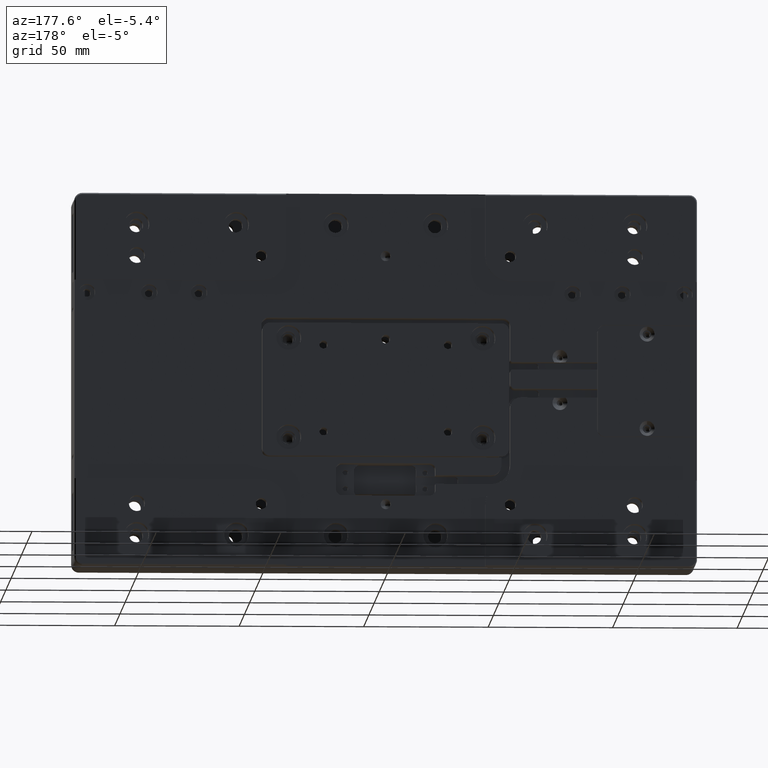
[diagram: clean part render]
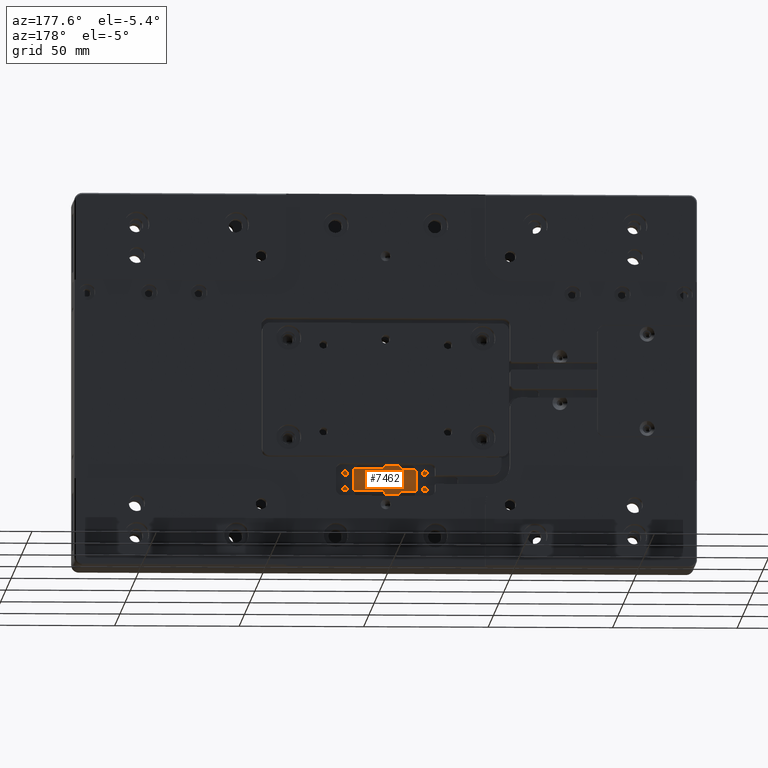
[diagram: same view with one face highlighted and labeled with its STEP entity id]
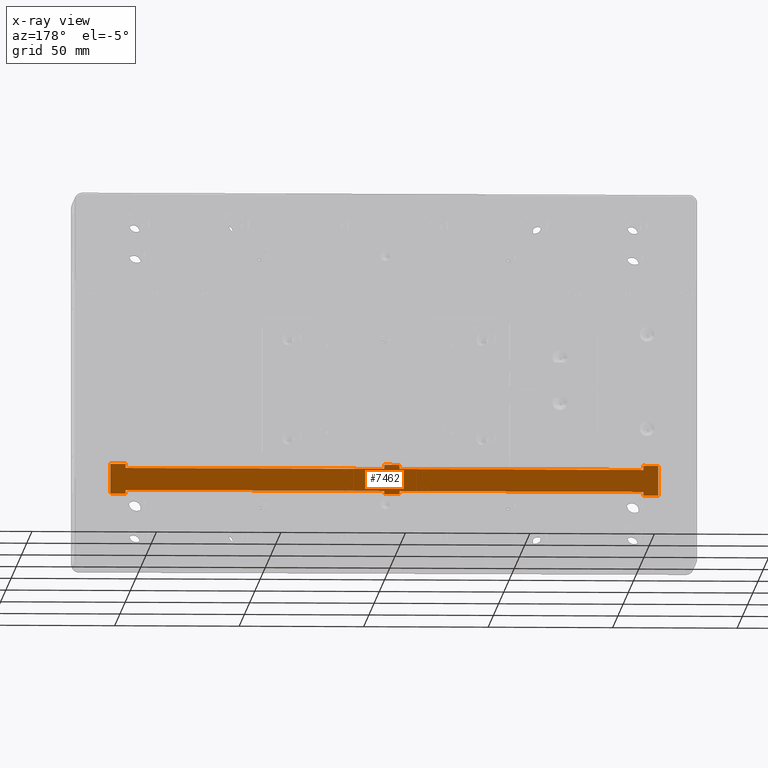
[diagram: x-ray of the same camera — body ghosted, the highlighted face saturated]
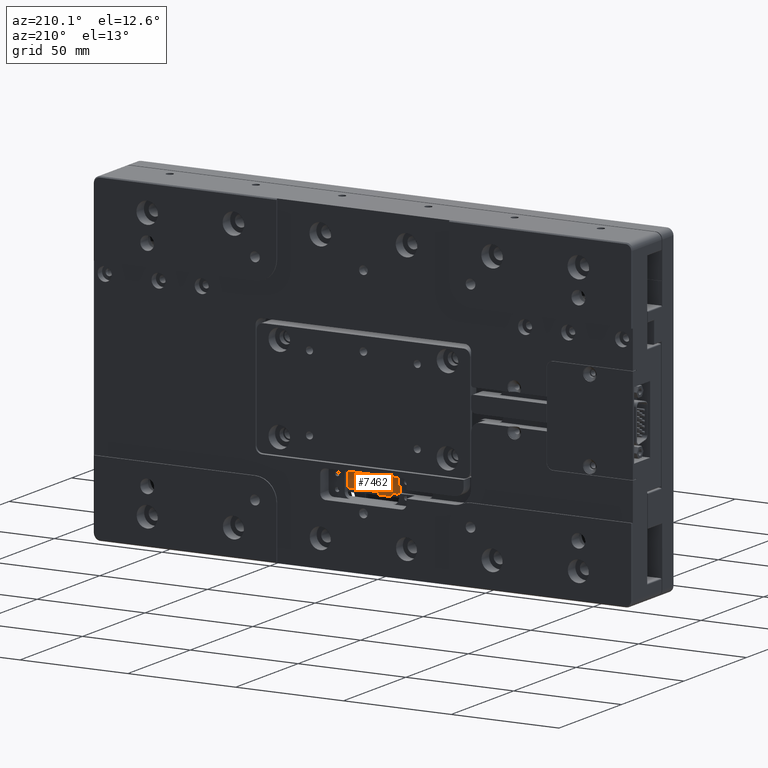
[diagram: same view with one face highlighted and labeled with its STEP entity id]
A machine part, auxiliary view. The second image highlights one B-rep face of the part: STEP entity #7462.
The next image is the same camera in x-ray: the body ghosted, the highlighted face saturated — about 0% of this face is hidden behind the body in this view.
A second angle (auxiliary view) of the same face is appended — the face is thin or edge-on in the first view.
In plain terms, the highlighted planar face has unit normal (0, 1, 0).
Its self-contained STEP definition (entity closure, byte-faithful):
#258 = VERTEX_POINT ( 'NONE', #20641 ) ;
#387 = DIRECTION ( 'NONE',  ( 1.000000000000000000, -0.000000000000000000, 0.000000000000000000 ) ) ;
#663 = CARTESIAN_POINT ( 'NONE',  ( 104.0000000000000142, -0.9120000000000000329, -34.67000000000000171 ) ) ;
#665 = ORIENTED_EDGE ( 'NONE', *, *, #26161, .T. ) ;
#938 = CARTESIAN_POINT ( 'NONE',  ( 0.000000000000000000, -0.9120000000000000329, -38.67000000000000171 ) ) ;
#953 = CARTESIAN_POINT ( 'NONE',  ( 0.000000000000000000, -0.9120000000000000329, -44.85000000000000142 ) ) ;
#1233 = DIRECTION ( 'NONE',  ( 1.000000000000000000, 0.000000000000000000, -0.000000000000000000 ) ) ;
#1599 = CARTESIAN_POINT ( 'NONE',  ( 0.000000000000000000, -0.9120000000000000329, -34.67000000000000171 ) ) ;
#1828 = VERTEX_POINT ( 'NONE', #953 ) ;
#1873 = VERTEX_POINT ( 'NONE', #19340 ) ;
#1964 = ORIENTED_EDGE ( 'NONE', *, *, #22223, .T. ) ;
#1990 = LINE ( 'NONE', #15896, #23854 ) ;
#2261 = ORIENTED_EDGE ( 'NONE', *, *, #26035, .T. ) ;
#2496 = VERTEX_POINT ( 'NONE', #10819 ) ;
#2770 = DIRECTION ( 'NONE',  ( -0.000000000000000000, 0.000000000000000000, -1.000000000000000000 ) ) ;
#3212 = EDGE_CURVE ( 'NONE', #1828, #19895, #20010, .T. ) ;
#3283 = VECTOR ( 'NONE', #34679, 1000.000000000000000 ) ;
#3350 = DIRECTION ( 'NONE',  ( 0.000000000000000000, -0.000000000000000000, 1.000000000000000000 ) ) ;
#3373 = EDGE_CURVE ( 'NONE', #258, #15784, #4113, .T. ) ;
#3597 = CARTESIAN_POINT ( 'NONE',  ( 104.0000000000000142, -0.9120000000000000329, -38.67000000000000171 ) ) ;
#4113 = LINE ( 'NONE', #15711, #3283 ) ;
#4285 = EDGE_CURVE ( 'NONE', #1873, #28539, #1990, .T. ) ;
#4422 = DIRECTION ( 'NONE',  ( 1.000000000000000000, 0.000000000000000000, -0.000000000000000000 ) ) ;
#4671 = ORIENTED_EDGE ( 'NONE', *, *, #4285, .T. ) ;
#5122 = DIRECTION ( 'NONE',  ( 0.000000000000000000, 0.000000000000000000, 1.000000000000000000 ) ) ;
#5160 = VECTOR ( 'NONE', #6179, 1000.000000000000000 ) ;
#5239 = ORIENTED_EDGE ( 'NONE', *, *, #17196, .T. ) ;
#5281 = VERTEX_POINT ( 'NONE', #7926 ) ;
#5769 = CARTESIAN_POINT ( 'NONE',  ( -6.000000000000001776, -0.9120000000000000329, -33.00000000000000000 ) ) ;
#6179 = DIRECTION ( 'NONE',  ( 0.000000000000000000, -0.000000000000000000, 1.000000000000000000 ) ) ;
#6230 = CARTESIAN_POINT ( 'NONE',  ( -6.000000000000000888, -0.9120000000000000329, -43.50000000000000711 ) ) ;
#6271 = ORIENTED_EDGE ( 'NONE', *, *, #17654, .T. ) ;
#6370 = CARTESIAN_POINT ( 'NONE',  ( 104.0000000000000284, -0.9120000000000000329, -43.50000000000000711 ) ) ;
#6471 = ORIENTED_EDGE ( 'NONE', *, *, #13898, .F. ) ;
#6499 = CARTESIAN_POINT ( 'NONE',  ( 109.5632503002220943, -0.9120000000000000329, -45.00000000000596856 ) ) ;
#6594 = VECTOR ( 'NONE', #31668, 1000.000000000000000 ) ;
#6818 = EDGE_CURVE ( 'NONE', #24577, #24976, #21214, .T. ) ;
#6826 = EDGE_CURVE ( 'NONE', #26795, #35192, #34854, .T. ) ;
#7060 = DIRECTION ( 'NONE',  ( -0.000000000000000000, 0.000000000000000000, -1.000000000000000000 ) ) ;
#7186 = ORIENTED_EDGE ( 'NONE', *, *, #13291, .T. ) ;
#7271 = ORIENTED_EDGE ( 'NONE', *, *, #6826, .T. ) ;
#7407 = VERTEX_POINT ( 'NONE', #33546 ) ;
#7462 = ADVANCED_FACE ( 'NONE', ( #11902 ), #22444, .T. ) ;
#7531 = ORIENTED_EDGE ( 'NONE', *, *, #21808, .F. ) ;
#7590 = AXIS2_PLACEMENT_3D ( 'NONE', #9053, #33368, #3350 ) ;
#7926 = CARTESIAN_POINT ( 'NONE',  ( 0.000000000000000000, -0.9120000000000000329, -34.67000000000000171 ) ) ;
#8053 = LINE ( 'NONE', #30387, #16811 ) ;
#8174 = CARTESIAN_POINT ( 'NONE',  ( -109.5632503002220943, -0.9120000000000000329, -45.00000000000596856 ) ) ;
#8333 = VERTEX_POINT ( 'NONE', #8446 ) ;
#8337 = CARTESIAN_POINT ( 'NONE',  ( 110.0000000000000000, -0.9120000000000000329, -44.89196010845009965 ) ) ;
#8446 = CARTESIAN_POINT ( 'NONE',  ( 0.000000000000000000, -0.9120000000000000329, -43.50000000000000711 ) ) ;
#8479 = LINE ( 'NONE', #3597, #20660 ) ;
#8650 = DIRECTION ( 'NONE',  ( -0.000000000000000000, 0.000000000000000000, -1.000000000000000000 ) ) ;
#8680 = CARTESIAN_POINT ( 'NONE',  ( -6.000000000000000888, -0.9120000000000000329, -44.85000000000000142 ) ) ;
#8699 = DIRECTION ( 'NONE',  ( 1.000000000000000000, -0.000000000000000000, 0.000000000000000000 ) ) ;
#9053 = CARTESIAN_POINT ( 'NONE',  ( 0.000000000000000000, -0.9120000000000000329, -38.67000000000000171 ) ) ;
#10151 = EDGE_CURVE ( 'NONE', #25513, #27929, #30551, .T. ) ;
#10184 = VECTOR ( 'NONE', #4422, 1000.000000000000000 ) ;
#10374 = ORIENTED_EDGE ( 'NONE', *, *, #3373, .T. ) ;
#10461 = CARTESIAN_POINT ( 'NONE',  ( 110.5000000000000000, -0.9120000000000000329, -47.85000000000000142 ) ) ;
#10498 = EDGE_LOOP ( 'NONE', ( #16755, #12603, #6471, #24901, #7186, #20848, #12175, #30168, #26065, #1964, #7531, #17996, #27676, #7271, #5239, #23125, #10374, #6271, #2261, #31801, #665, #4671 ) ) ;
#10677 = CARTESIAN_POINT ( 'NONE',  ( 104.0000000000000142, -0.9120000000000000329, -38.67000000000000171 ) ) ;
#10819 = CARTESIAN_POINT ( 'NONE',  ( -104.0000000000000284, -0.9120000000000000329, -34.67000000000000171 ) ) ;
#11048 = VECTOR ( 'NONE', #12293, 1000.000000000000000 ) ;
#11063 = CARTESIAN_POINT ( 'NONE',  ( 0.000000000000000000, -0.9120000000000000329, -43.50000000000000711 ) ) ;
#11758 = VERTEX_POINT ( 'NONE', #663 ) ;
#11874 = CARTESIAN_POINT ( 'NONE',  ( 0.000000000000000000, -0.9120000000000000329, -43.50000000000000711 ) ) ;
#11902 = FACE_OUTER_BOUND ( 'NONE', #10498, .T. ) ;
#11950 = CARTESIAN_POINT ( 'NONE',  ( -104.0000000000000284, -0.9120000000000000329, -33.00000000000000000 ) ) ;
#12027 = DIRECTION ( 'NONE',  ( -1.000000000000000000, -0.000000000000000000, 0.000000000000000000 ) ) ;
#12175 = ORIENTED_EDGE ( 'NONE', *, *, #3212, .T. ) ;
#12242 = CARTESIAN_POINT ( 'NONE',  ( -125.0000000000000000, -0.9119999999999995888, -45.00000000000000000 ) ) ;
#12293 = DIRECTION ( 'NONE',  ( 0.000000000000000000, 0.000000000000000000, 1.000000000000000000 ) ) ;
#12358 = CARTESIAN_POINT ( 'NONE',  ( -104.0000000000000142, -0.9120000000000000329, -38.67000000000000171 ) ) ;
#12603 = ORIENTED_EDGE ( 'NONE', *, *, #30873, .T. ) ;
#13191 = DIRECTION ( 'NONE',  ( 4.625929269271481378E-14, 0.000000000000000000, 1.000000000000000000 ) ) ;
#13291 = EDGE_CURVE ( 'NONE', #15210, #8333, #15069, .T. ) ;
#13318 = DIRECTION ( 'NONE',  ( -0.000000000000000000, -1.000000000000000000, -0.000000000000000000 ) ) ;
#13367 = VECTOR ( 'NONE', #21966, 1000.000000000000000 ) ;
#13885 = LINE ( 'NONE', #10677, #32150 ) ;
#13898 = EDGE_CURVE ( 'NONE', #17020, #28782, #24430, .T. ) ;
#14177 = LINE ( 'NONE', #33141, #16736 ) ;
#14330 = VECTOR ( 'NONE', #12027, 1000.000000000000000 ) ;
#14825 = DIRECTION ( 'NONE',  ( -1.000000000000000000, -0.000000000000000000, 0.000000000000000000 ) ) ;
#15007 = VECTOR ( 'NONE', #31540, 1000.000000000000000 ) ;
#15069 = LINE ( 'NONE', #11874, #14330 ) ;
#15077 = EDGE_CURVE ( 'NONE', #17020, #15210, #13885, .T. ) ;
#15210 = VERTEX_POINT ( 'NONE', #6370 ) ;
#15711 = CARTESIAN_POINT ( 'NONE',  ( -6.000000000000000000, -0.9120000000000000329, -38.67000000000000171 ) ) ;
#15784 = VERTEX_POINT ( 'NONE', #5769 ) ;
#15896 = CARTESIAN_POINT ( 'NONE',  ( 115.0000000000000000, -0.9120000000000000329, -33.00000000000000000 ) ) ;
#16064 = VECTOR ( 'NONE', #24102, 1000.000000000000000 ) ;
#16736 = VECTOR ( 'NONE', #8650, 1000.000000000000000 ) ;
#16755 = ORIENTED_EDGE ( 'NONE', *, *, #28817, .T. ) ;
#16811 = VECTOR ( 'NONE', #387, 1000.000000000000000 ) ;
#17020 = VERTEX_POINT ( 'NONE', #30088 ) ;
#17043 = CARTESIAN_POINT ( 'NONE',  ( 110.0000000000000000, -0.9120000000000000329, -34.67000000000000171 ) ) ;
#17196 = EDGE_CURVE ( 'NONE', #35192, #2496, #29164, .T. ) ;
#17654 = EDGE_CURVE ( 'NONE', #15784, #7407, #8053, .T. ) ;
#17996 = ORIENTED_EDGE ( 'NONE', *, *, #6818, .T. ) ;
#18817 = AXIS2_PLACEMENT_3D ( 'NONE', #10461, #13318, #5122 ) ;
#18824 = LINE ( 'NONE', #938, #20906 ) ;
#19019 = CARTESIAN_POINT ( 'NONE',  ( -110.0000000000000000, -0.9120000000000000329, -44.89196010845009965 ) ) ;
#19340 = CARTESIAN_POINT ( 'NONE',  ( 104.0000000000000142, -0.9120000000000000329, -33.00000000000000000 ) ) ;
#19757 = VECTOR ( 'NONE', #7060, 1000.000000000000000 ) ;
#19895 = VERTEX_POINT ( 'NONE', #8680 ) ;
#19983 = LINE ( 'NONE', #20155, #11048 ) ;
#20010 = LINE ( 'NONE', #30921, #25514 ) ;
#20120 = CARTESIAN_POINT ( 'NONE',  ( 0.000000000000000000, -0.9120000000000000329, -34.67000000000000171 ) ) ;
#20155 = CARTESIAN_POINT ( 'NONE',  ( -110.0000000000000000, -0.9120000000000000329, -43.50000000000000711 ) ) ;
#20410 = VECTOR ( 'NONE', #28484, 1000.000000000000000 ) ;
#20641 = CARTESIAN_POINT ( 'NONE',  ( -6.000000000000002665, -0.9120000000000000329, -34.67000000000000171 ) ) ;
#20660 = VECTOR ( 'NONE', #25397, 1000.000000000000000 ) ;
#20848 = ORIENTED_EDGE ( 'NONE', *, *, #26103, .T. ) ;
#20906 = VECTOR ( 'NONE', #2770, 1000.000000000000000 ) ;
#21214 = CIRCLE ( 'NONE', #29778, 3.000000000000002665 ) ;
#21808 = EDGE_CURVE ( 'NONE', #24577, #34518, #29053, .T. ) ;
#21966 = DIRECTION ( 'NONE',  ( -1.000000000000000000, -0.000000000000000000, 0.000000000000000000 ) ) ;
#22223 = EDGE_CURVE ( 'NONE', #27929, #34518, #14177, .T. ) ;
#22374 = VECTOR ( 'NONE', #8699, 1000.000000000000000 ) ;
#22444 = PLANE ( 'NONE',  #7590 ) ;
#22714 = CARTESIAN_POINT ( 'NONE',  ( -104.0000000000000284, -0.9120000000000000329, -43.50000000000000711 ) ) ;
#23125 = ORIENTED_EDGE ( 'NONE', *, *, #24330, .T. ) ;
#23167 = LINE ( 'NONE', #20120, #10184 ) ;
#23412 = DIRECTION ( 'NONE',  ( 1.000000000000000000, -0.000000000000000000, 0.000000000000000000 ) ) ;
#23851 = LINE ( 'NONE', #34766, #19757 ) ;
#23854 = VECTOR ( 'NONE', #23412, 1000.000000000000000 ) ;
#23940 = CARTESIAN_POINT ( 'NONE',  ( -110.5000000000000000, -0.9120000000000000329, -47.85000000000000142 ) ) ;
#24102 = DIRECTION ( 'NONE',  ( 1.000000000000000000, -0.000000000000000000, 0.000000000000000000 ) ) ;
#24330 = EDGE_CURVE ( 'NONE', #2496, #258, #25704, .T. ) ;
#24430 = LINE ( 'NONE', #32645, #22374 ) ;
#24577 = VERTEX_POINT ( 'NONE', #8174 ) ;
#24901 = ORIENTED_EDGE ( 'NONE', *, *, #15077, .T. ) ;
#24976 = VERTEX_POINT ( 'NONE', #19019 ) ;
#25397 = DIRECTION ( 'NONE',  ( 0.000000000000000000, -0.000000000000000000, 1.000000000000000000 ) ) ;
#25513 = VERTEX_POINT ( 'NONE', #6230 ) ;
#25514 = VECTOR ( 'NONE', #14825, 1000.000000000000000 ) ;
#25704 = LINE ( 'NONE', #1599, #32793 ) ;
#25779 = LINE ( 'NONE', #17043, #20410 ) ;
#26035 = EDGE_CURVE ( 'NONE', #7407, #5281, #23851, .T. ) ;
#26065 = ORIENTED_EDGE ( 'NONE', *, *, #10151, .T. ) ;
#26103 = EDGE_CURVE ( 'NONE', #8333, #1828, #18824, .T. ) ;
#26161 = EDGE_CURVE ( 'NONE', #11758, #1873, #8479, .T. ) ;
#26795 = VERTEX_POINT ( 'NONE', #33746 ) ;
#26814 = CIRCLE ( 'NONE', #18817, 3.000000000000002665 ) ;
#27627 = CARTESIAN_POINT ( 'NONE',  ( -6.000000000000000000, -0.9120000000000000329, -38.67000000000000171 ) ) ;
#27663 = DIRECTION ( 'NONE',  ( 0.000000000000000000, -0.000000000000000000, 1.000000000000000000 ) ) ;
#27676 = ORIENTED_EDGE ( 'NONE', *, *, #33956, .T. ) ;
#27929 = VERTEX_POINT ( 'NONE', #22714 ) ;
#28484 = DIRECTION ( 'NONE',  ( 0.000000000000000000, 0.000000000000000000, -1.000000000000000000 ) ) ;
#28539 = VERTEX_POINT ( 'NONE', #31905 ) ;
#28782 = VERTEX_POINT ( 'NONE', #6499 ) ;
#28817 = EDGE_CURVE ( 'NONE', #28539, #31087, #25779, .T. ) ;
#29053 = LINE ( 'NONE', #12242, #15007 ) ;
#29164 = LINE ( 'NONE', #12358, #6594 ) ;
#29586 = EDGE_CURVE ( 'NONE', #5281, #11758, #23167, .T. ) ;
#29778 = AXIS2_PLACEMENT_3D ( 'NONE', #23940, #31820, #13191 ) ;
#30088 = CARTESIAN_POINT ( 'NONE',  ( 104.0000000000000284, -0.9119999999999996998, -45.00000000000000711 ) ) ;
#30168 = ORIENTED_EDGE ( 'NONE', *, *, #31148, .T. ) ;
#30387 = CARTESIAN_POINT ( 'NONE',  ( 115.0000000000000000, -0.9120000000000000329, -33.00000000000000000 ) ) ;
#30551 = LINE ( 'NONE', #11063, #13367 ) ;
#30666 = LINE ( 'NONE', #27627, #5160 ) ;
#30873 = EDGE_CURVE ( 'NONE', #31087, #28782, #26814, .T. ) ;
#30921 = CARTESIAN_POINT ( 'NONE',  ( 0.000000000000000000, -0.9120000000000000329, -44.85000000000000142 ) ) ;
#31087 = VERTEX_POINT ( 'NONE', #8337 ) ;
#31148 = EDGE_CURVE ( 'NONE', #19895, #25513, #30666, .T. ) ;
#31540 = DIRECTION ( 'NONE',  ( 1.000000000000000000, -0.000000000000000000, 0.000000000000000000 ) ) ;
#31668 = DIRECTION ( 'NONE',  ( -0.000000000000000000, 0.000000000000000000, -1.000000000000000000 ) ) ;
#31801 = ORIENTED_EDGE ( 'NONE', *, *, #29586, .T. ) ;
#31820 = DIRECTION ( 'NONE',  ( -0.000000000000000000, -1.000000000000000000, -0.000000000000000000 ) ) ;
#31905 = CARTESIAN_POINT ( 'NONE',  ( 110.0000000000000000, -0.9120000000000000329, -33.00000000000000000 ) ) ;
#31986 = CARTESIAN_POINT ( 'NONE',  ( 115.0000000000000000, -0.9120000000000000329, -33.00000000000000000 ) ) ;
#32030 = CARTESIAN_POINT ( 'NONE',  ( -104.0000000000000284, -0.9119999999999996998, -45.00000000000000711 ) ) ;
#32150 = VECTOR ( 'NONE', #27663, 1000.000000000000000 ) ;
#32645 = CARTESIAN_POINT ( 'NONE',  ( -125.0000000000000000, -0.9119999999999995888, -45.00000000000000000 ) ) ;
#32793 = VECTOR ( 'NONE', #1233, 1000.000000000000000 ) ;
#33141 = CARTESIAN_POINT ( 'NONE',  ( -104.0000000000000142, -0.9120000000000000329, -38.67000000000000171 ) ) ;
#33368 = DIRECTION ( 'NONE',  ( 0.000000000000000000, 1.000000000000000000, 0.000000000000000000 ) ) ;
#33546 = CARTESIAN_POINT ( 'NONE',  ( 0.000000000000000000, -0.9120000000000000329, -33.00000000000000000 ) ) ;
#33746 = CARTESIAN_POINT ( 'NONE',  ( -110.0000000000000000, -0.9120000000000000329, -33.00000000000000000 ) ) ;
#33956 = EDGE_CURVE ( 'NONE', #24976, #26795, #19983, .T. ) ;
#34518 = VERTEX_POINT ( 'NONE', #32030 ) ;
#34679 = DIRECTION ( 'NONE',  ( 0.000000000000000000, -0.000000000000000000, 1.000000000000000000 ) ) ;
#34766 = CARTESIAN_POINT ( 'NONE',  ( 0.000000000000000000, -0.9120000000000000329, -38.67000000000000171 ) ) ;
#34854 = LINE ( 'NONE', #31986, #16064 ) ;
#35192 = VERTEX_POINT ( 'NONE', #11950 ) ;